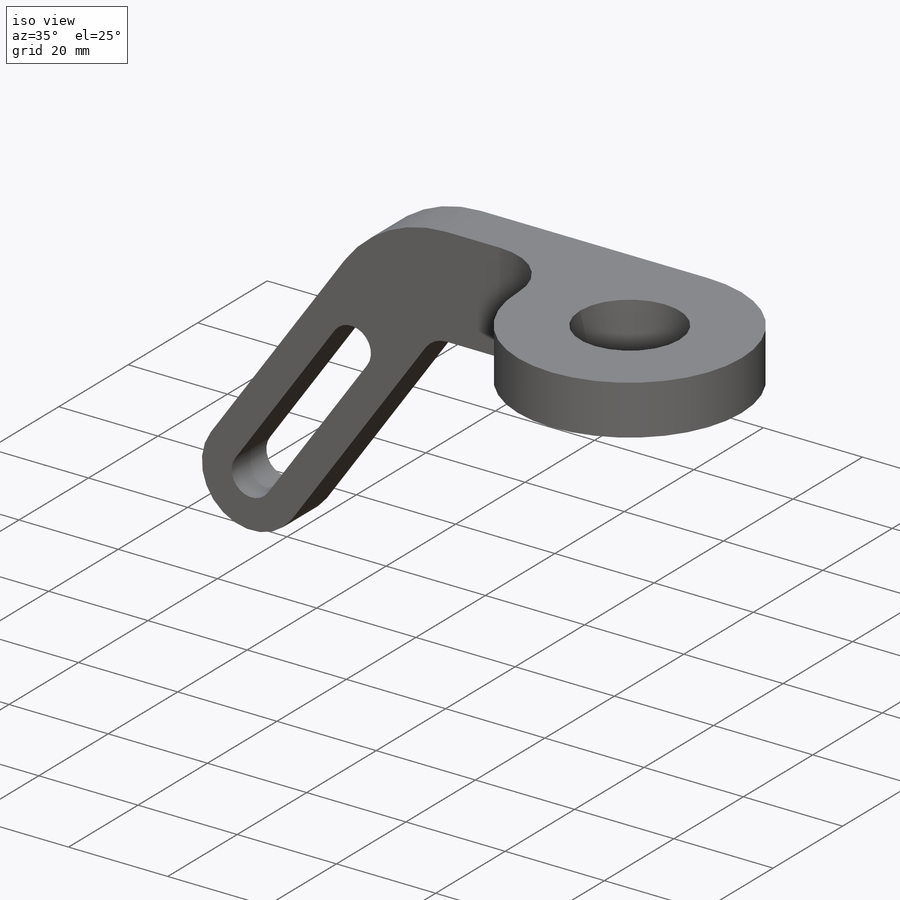
[diagram: iso view]
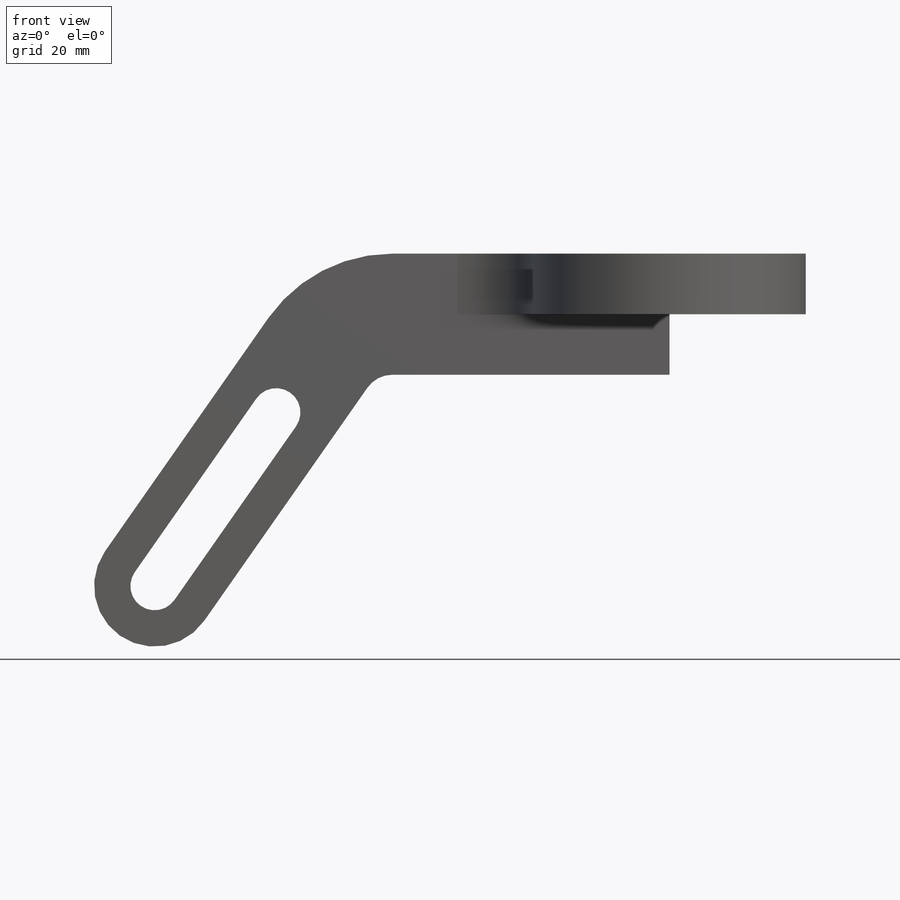
[diagram: front view]
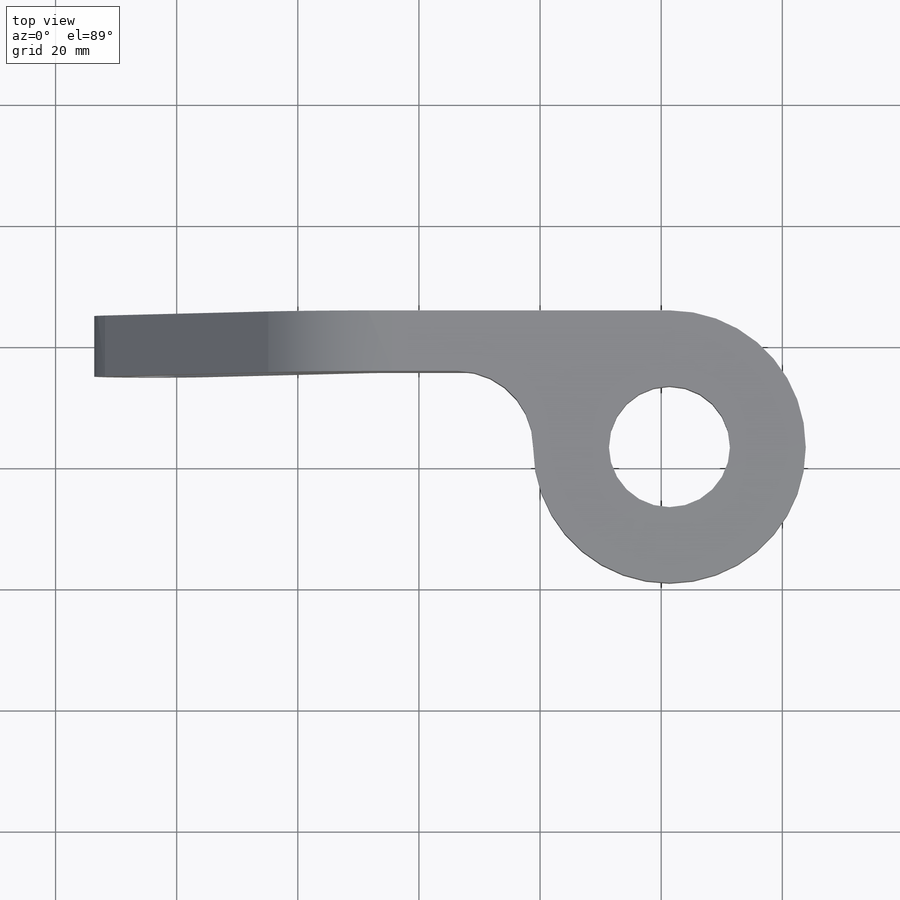
[diagram: top view]
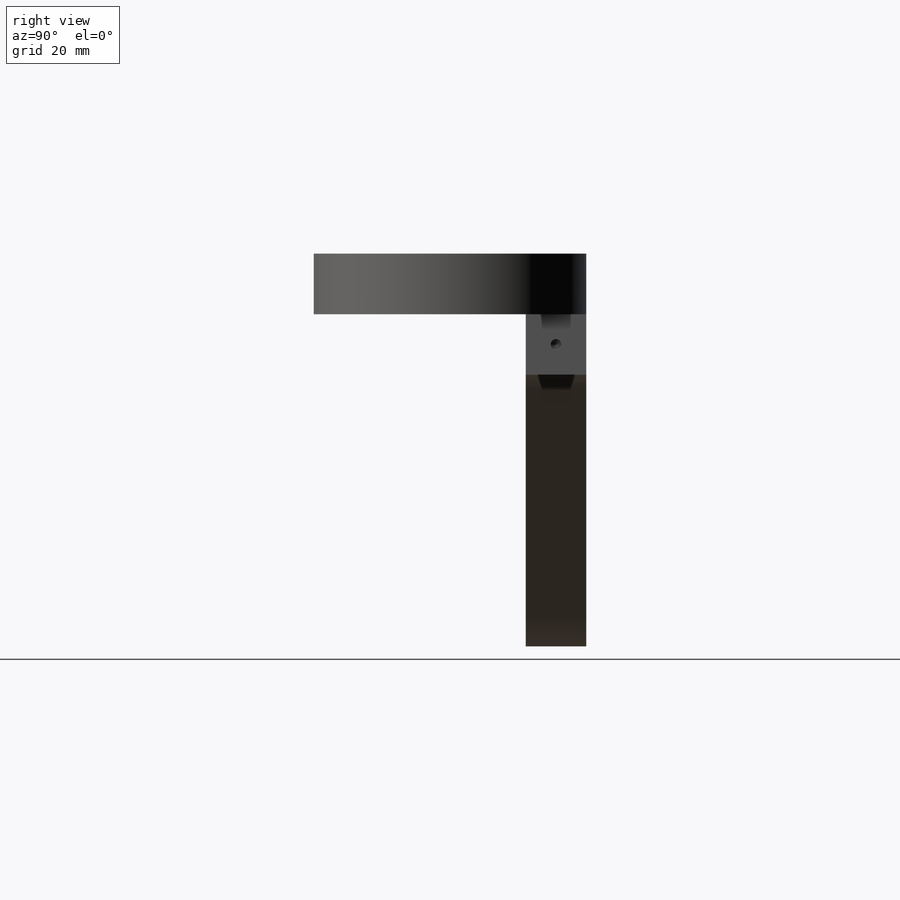
[diagram: right view]
SOLIDWORKS PART (.sldprt)
format: sldprt  version: not decoded by parser v0  size: 142,336 bytes
history: native  units: mm
features: sketch x5, plane x3, extrude x2, material x1, hole x1 (+12 scaffold rows collapsed)
feature tree (24):
  scaffold x12  (default folders/planes/origin — collapsed)
  material  "Material <não especificado>"
  plane  "Plano frontal"
  plane  "Plano superior"
  plane  "Plano direito"
  sketch  "Sketch1"  dims[c1.D4=10.0mm c1.D6=25.0mm c1.D7=25.0mm c1.D8=25.0mm c2.D7=5.0mm c2.D9=8.0mm c2.D10=8.0mm c2.D8=8.0mm c2.D11=8.0mm c3.D8=4.0mm c3.D6=25.0mm c3.D11=25.0mm c3.D1=~42.570106mm c4.D1=125.0deg c4.D2=20.0mm c4.D3=20.0mm c4.D4=~20.386331mm c4.D5=85.0mm c4.D6=~73.963979mm c4.D8=60.0mm c4.D10=35.0mm c4.D9=6.0mm c5.D6=60.0mm]
  extrude  "Extrude1"  Depth=10mm
  sketch  "Sketch2"  dims[D1=45.0mm D2=20.0mm D3=20.0mm]
  extrude  "Extrude2"  Depth=10mm
  sketch  "Esboço1"  dims[D1=10.0mm]
  hole  "Broca de rosquear para tarraxa de M2.2x0.451"  Diameter=1.75mm Depth=5mm
  sketch  "3DSketch2"
  sketch  "Esboço3"  dims[hole-wizard template sketch: 46 standard entries collapsed; hole parameters kept: c15.Hole Dia.=1.75mm c15.Hole Depth=5.0mm c15.D3=~14.816244mm c15.Drill Angle=118.0deg]
decode coverage: 7 of 8 modeling features carry decoded parameters
note: ~ marks probable driven/reference dimensions
note: suppression state not decoded; provenance and decode notes live in map.json
